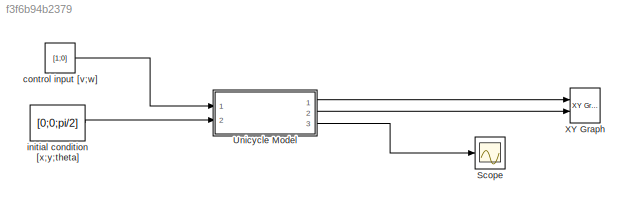
MODEL slx_f3f6b94b2379
KIND model
CONFIG AbsTol = auto
CONFIG EnableMultiTasking = off
CONFIG FixedStep = auto
CONFIG MaxStep = auto
CONFIG MinStep = auto
CONFIG RelTol = 1e-3
CONFIG SampleTimeConstraint = Unconstrained
CONFIG SolverName = VariableStepAuto
CONFIG StartTime = 0.0
CONFIG StopTime = 50.0
BLOCK [Scope] Scope
  Floating = off
  NumInputPorts = 1
  Ports = [1]
  ScopeSpecificationString = Simulink.scopes.TimeScopeBlockCfg('CurrentConfiguration', extmgr.ConfigurationSet(extmgr.Configuration('Core','General UI',true),extmgr.Configuration('Core','Source UI',true),extmgr.Configuration('Sources','WiredSimulink',true),extmgr.Configuration('Visuals','Time Domain',true),extmgr.Configuration('Tools','Plot Navigation',true),extmgr.Configuration('Tools','Measurements',true)),'Version','2021a'...<+1ch>
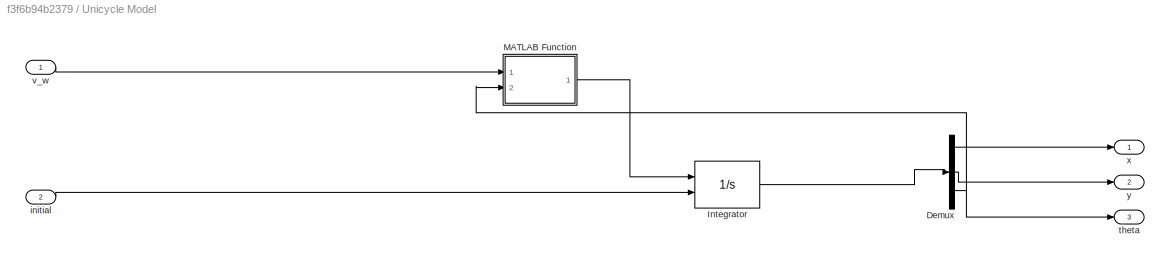
BLOCK [SubSystem] Unicycle Model
  Ports = [2, 3]
  RequestExecContextInheritance = off
BLOCK [Demux] Unicycle Model/Demux
  Outputs = 3
  Ports = [1, 3]
BLOCK [Integrator] Unicycle Model/Integrator
  InitialConditionSource = external
  Ports = [2, 1]
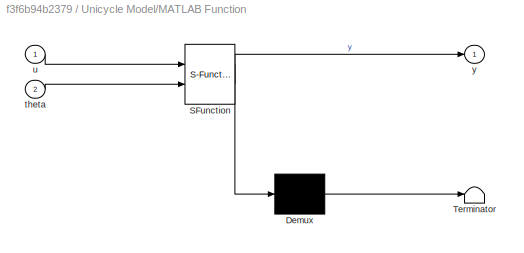
BLOCK [SubSystem] Unicycle Model/MATLAB Function
  ErrorFcn = Stateflow.Translate.translate
  PermitHierarchicalResolution = ExplicitOnly
  Ports = [2, 1]
  RequestExecContextInheritance = off
  SFBlockType = MATLAB Function
  TreatAsAtomicUnit = on
BLOCK [Demux] Unicycle Model/MATLAB Function/ Demux 
  Outputs = 1
  Ports = [1, 1]
BLOCK [S-Function] Unicycle Model/MATLAB Function/ SFunction 
  EnableBusSupport = on
  FunctionName = sf_sfun
  PortCounts = [2 2]
  Ports = [2, 2]
  SFcnIsStateOwnerBlock = off
  SFunctionDeploymentMode = off
  Tag = Stateflow S-Function 1
BLOCK [Terminator] Unicycle Model/MATLAB Function/ Terminator 
BLOCK [Inport] Unicycle Model/MATLAB Function/theta
  Port = 2
BLOCK [Inport] Unicycle Model/MATLAB Function/u
BLOCK [Outport] Unicycle Model/MATLAB Function/y
BLOCK [Inport] Unicycle Model/initial
  Port = 2
BLOCK [Outport] Unicycle Model/theta
  Port = 3
BLOCK [Inport] Unicycle Model/v_w
BLOCK [Outport] Unicycle Model/x
BLOCK [Outport] Unicycle Model/y
  Port = 2
BLOCK [Reference] XY Graph  REF=simulink/Sinks/XY Graph
  Ports = [2]
  SourceBlock = simulink/Sinks/XY Graph
  SourceProductBaseCode = SL
  SourceType = XY scope.
BLOCK [Constant] control input [v;w]
  Value = [1;0]
BLOCK [Constant] initial condition [x;y;theta]
  Value = [0;0;pi/2]
LINE Unicycle Model/Demux:1 -> Unicycle Model/x:1
LINE Unicycle Model/Demux:2 -> Unicycle Model/y:1
NET Unicycle Model/Demux:3 -> Unicycle Model/MATLAB Function:2, Unicycle Model/theta:1
LINE Unicycle Model/Integrator:1 -> Unicycle Model/Demux:1
LINE Unicycle Model/MATLAB Function:1 -> Unicycle Model/Integrator:1
LINE Unicycle Model/initial:1 -> Unicycle Model/Integrator:2
LINE Unicycle Model/v_w:1 -> Unicycle Model/MATLAB Function:1
LINE Unicycle Model:1 -> XY Graph:1
LINE Unicycle Model:2 -> XY Graph:2
LINE Unicycle Model:3 -> Scope:1
LINE control input [v;w]:1 -> Unicycle Model:1
LINE initial condition [x;y;theta]:1 -> Unicycle Model:2
note: NET lines group one-source signal fan-out (src -> all destinations, sorted); 1:1 wires keep LINE
CHART Unicycle Model/MATLAB Function states=1 transitions=1
  STATE_LABEL 'eML_blk_kernel()'
  STATE_LABEL 'SCRIPT:\nfunction y = fcn(u, theta)\n\n\nv = u(1);\nw = u(2);\n\ny = [v*cos(theta); v*sin(theta); w];\n'
CHART  states=0 transitions=0
